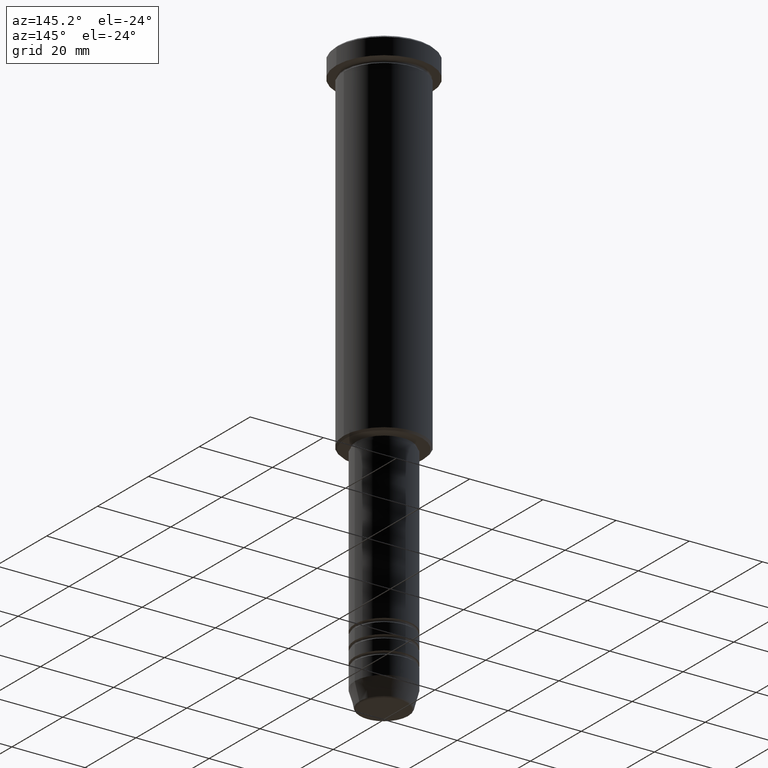
[diagram: clean part render]
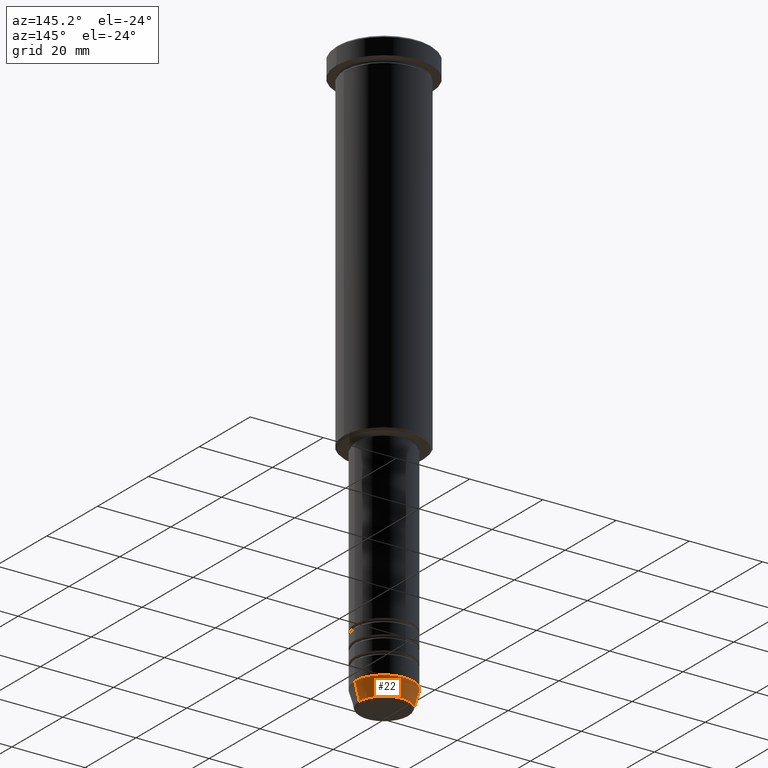
[diagram: same view with one face highlighted and labeled with its STEP entity id]
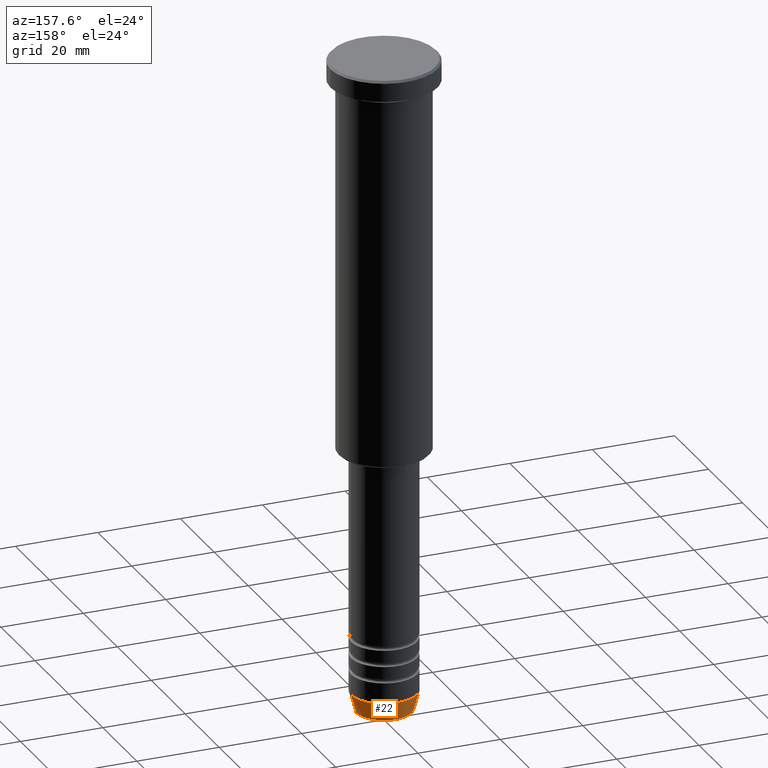
[diagram: same view with one face highlighted and labeled with its STEP entity id]
A machine part, auxiliary view. The second image highlights one B-rep face of the part: STEP entity #22.
A second angle (auxiliary view) of the same face is appended — the face is thin or edge-on in the first view.
In plain terms, the highlighted conical surface has half-angle 15 deg.
Its self-contained STEP definition (entity closure, byte-faithful):
#22 = ADVANCED_FACE ( 'NONE', ( #284 ), #550, .T. ) ;
#37 = CARTESIAN_POINT ( 'NONE',  ( 0.000000000000000000, 0.000000000000000000, -159.6294095225512706 ) ) ;
#44 = CARTESIAN_POINT ( 'NONE',  ( 0.000000000000000000, 0.000000000000000000, -155.0000000000000000 ) ) ;
#50 = CIRCLE ( 'NONE', #704, 8.000000000000000000 ) ;
#62 = VERTEX_POINT ( 'NONE', #512 ) ;
#88 = CARTESIAN_POINT ( 'NONE',  ( 8.000000000000000000, 0.000000000000000000, -155.0000000000000000 ) ) ;
#132 = DIRECTION ( 'NONE',  ( -0.2588190451025202399, 3.169619151431758162E-17, 0.9659258262890684232 ) ) ;
#149 = VERTEX_POINT ( 'NONE', #88 ) ;
#177 = VECTOR ( 'NONE', #862, 999.9999999999998863 ) ;
#225 = CARTESIAN_POINT ( 'NONE',  ( -8.000000000000000000, 9.797174393178825657E-16, -155.0000000000000000 ) ) ;
#234 = DIRECTION ( 'NONE',  ( 1.000000000000000000, 0.000000000000000000, 0.000000000000000000 ) ) ;
#258 = VERTEX_POINT ( 'NONE', #491 ) ;
#284 = FACE_OUTER_BOUND ( 'NONE', #289, .T. ) ;
#289 = EDGE_LOOP ( 'NONE', ( #885, #521, #315, #965 ) ) ;
#292 = AXIS2_PLACEMENT_3D ( 'NONE', #37, #403, #234 ) ;
#298 = DIRECTION ( 'NONE',  ( -0.000000000000000000, -0.000000000000000000, 1.000000000000000000 ) ) ;
#302 = CARTESIAN_POINT ( 'NONE',  ( 0.000000000000000000, 0.000000000000000000, -155.0000000000000000 ) ) ;
#315 = ORIENTED_EDGE ( 'NONE', *, *, #952, .F. ) ;
#382 = VECTOR ( 'NONE', #132, 999.9999999999998863 ) ;
#391 = DIRECTION ( 'NONE',  ( 1.000000000000000000, 0.000000000000000000, 0.000000000000000000 ) ) ;
#403 = DIRECTION ( 'NONE',  ( -0.000000000000000000, -0.000000000000000000, 1.000000000000000000 ) ) ;
#473 = DIRECTION ( 'NONE',  ( 1.000000000000000000, 0.000000000000000000, 0.000000000000000000 ) ) ;
#482 = DIRECTION ( 'NONE',  ( -0.000000000000000000, -0.000000000000000000, 1.000000000000000000 ) ) ;
#491 = CARTESIAN_POINT ( 'NONE',  ( -8.000000000000000000, 9.797174393178825657E-16, -155.0000000000000000 ) ) ;
#504 = EDGE_CURVE ( 'NONE', #626, #149, #968, .T. ) ;
#512 = CARTESIAN_POINT ( 'NONE',  ( -6.759553456999439547, 9.037619948979308185E-16, -159.6294095225512706 ) ) ;
#521 = ORIENTED_EDGE ( 'NONE', *, *, #1003, .T. ) ;
#530 = AXIS2_PLACEMENT_3D ( 'NONE', #302, #298, #473 ) ;
#550 = CONICAL_SURFACE ( 'NONE', #530, 8.000000000000000000, 0.2617993877991488527 ) ;
#626 = VERTEX_POINT ( 'NONE', #1176 ) ;
#704 = AXIS2_PLACEMENT_3D ( 'NONE', #44, #482, #391 ) ;
#739 = CIRCLE ( 'NONE', #292, 6.759553456999438659 ) ;
#862 = DIRECTION ( 'NONE',  ( 0.2588190451025202399, 0.000000000000000000, 0.9659258262890684232 ) ) ;
#885 = ORIENTED_EDGE ( 'NONE', *, *, #962, .T. ) ;
#951 = CARTESIAN_POINT ( 'NONE',  ( 8.000000000000000000, 0.000000000000000000, -155.0000000000000000 ) ) ;
#952 = EDGE_CURVE ( 'NONE', #149, #258, #50, .T. ) ;
#962 = EDGE_CURVE ( 'NONE', #626, #62, #739, .T. ) ;
#965 = ORIENTED_EDGE ( 'NONE', *, *, #504, .F. ) ;
#968 = LINE ( 'NONE', #951, #177 ) ;
#1003 = EDGE_CURVE ( 'NONE', #62, #258, #1134, .T. ) ;
#1134 = LINE ( 'NONE', #225, #382 ) ;
#1176 = CARTESIAN_POINT ( 'NONE',  ( 6.759553456999438659, 0.000000000000000000, -159.6294095225512706 ) ) ;